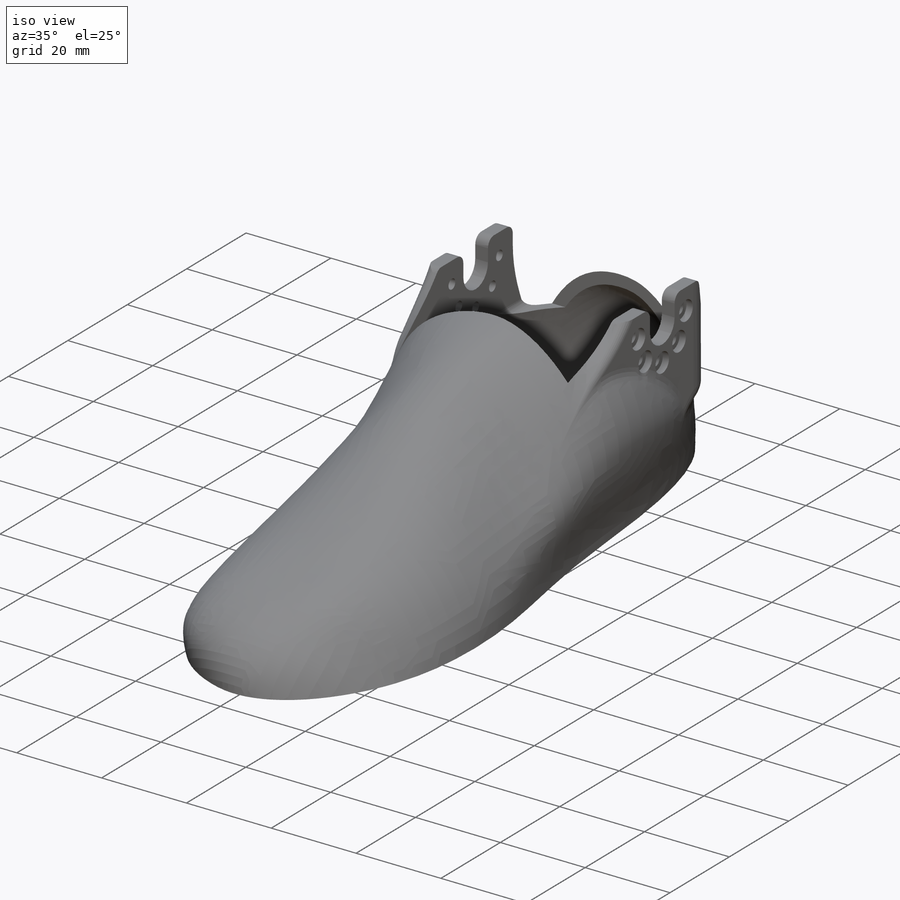
[diagram: iso view]
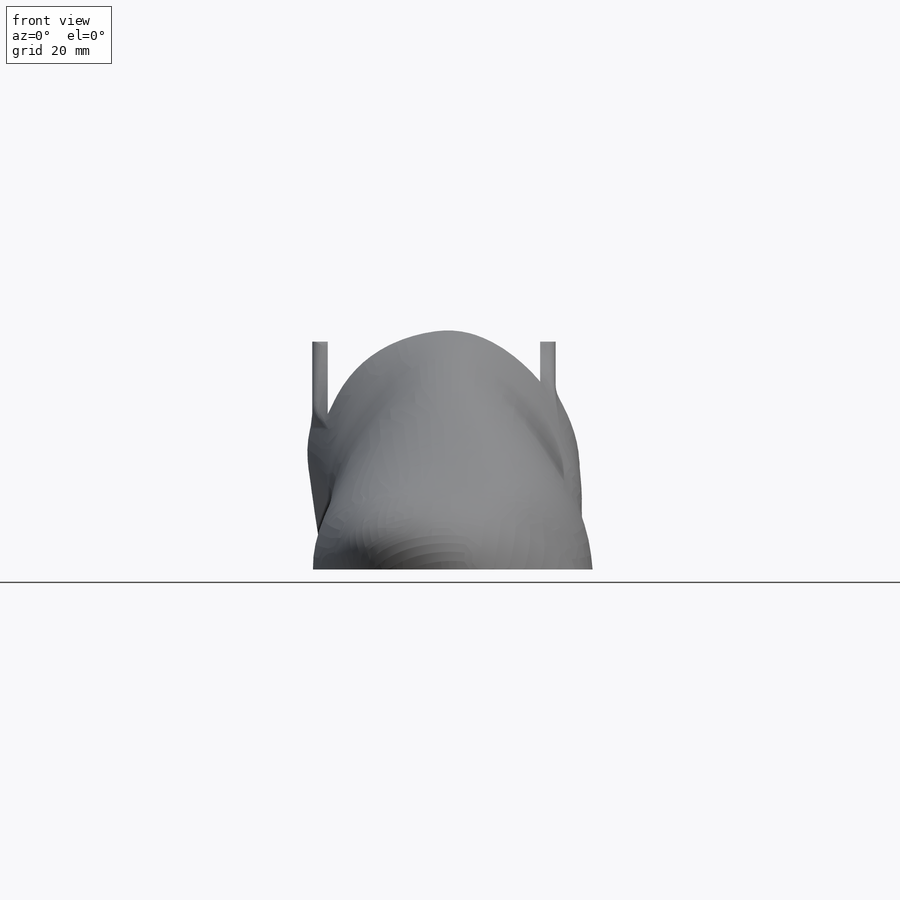
[diagram: front view]
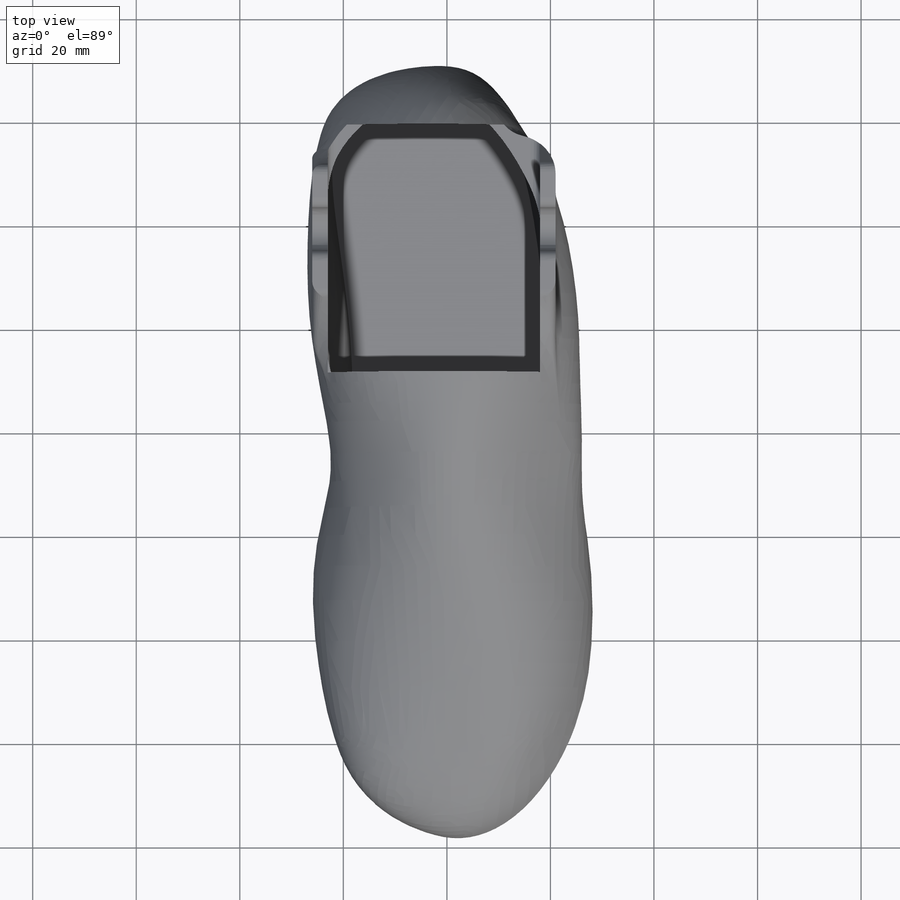
[diagram: top view]
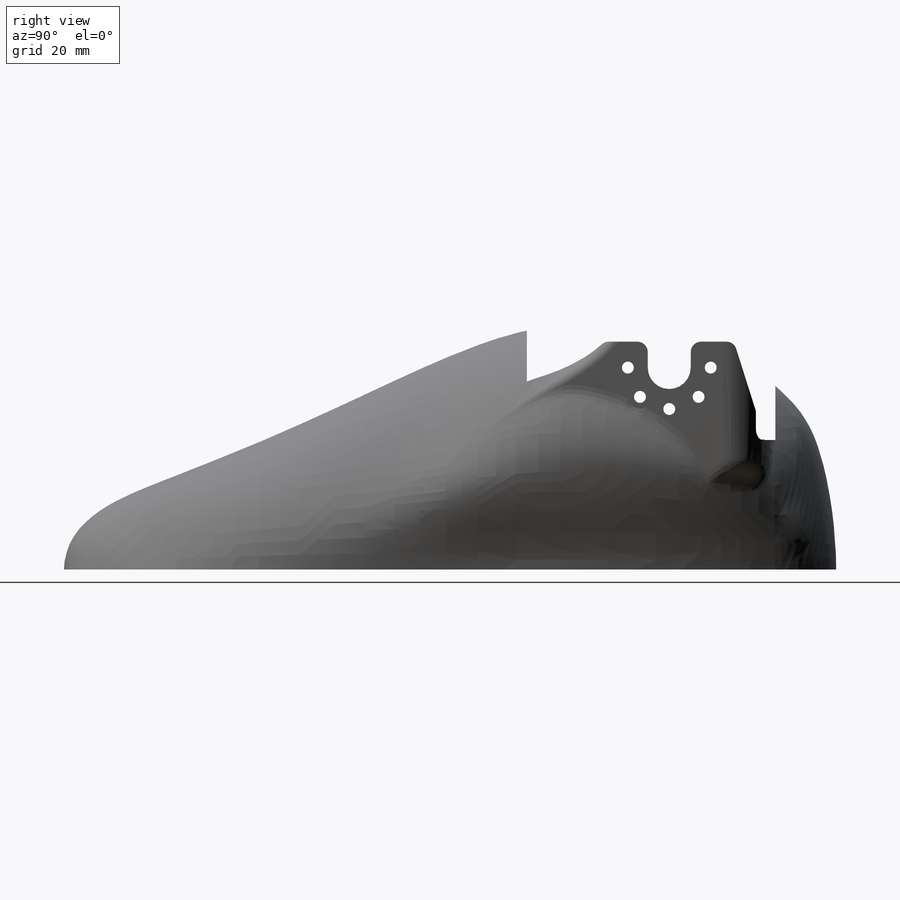
[diagram: right view]
SOLIDWORKS PART (.sldprt)
format: sldprt  version: not decoded by parser v0  size: 4,566,016 bytes
history: native  units: mm
features: sketch x32, plane x12, fillet x11, extrude x5, cut_extrude x2, hole x2, pattern_circular x2, material x1, mirror x1, delete_body x1 (+13 scaffold rows collapsed; 1 parser-record rows omitted)
feature tree (83):
  scaffold x13  (default folders/planes/origin — collapsed)
  material  "Material <not specified>"
  sketch  "lateral_dimensions"  dims[D1=51.0mm D2=98.0mm D3=47.0mm D4=29.8mm D5=104.3mm D6=134.1mm]
  sketch  "planes_positions"
  sketch  "top_dimensions"  dims[c1.D1=28.5mm c1.D2=26.0mm c2.D1=26.0mm c2.D2=28.5mm]
  sketch  "lateral_shape"
  plane  "sole_plane"
  sketch  "sole_shape"  dims[D1=~51.73616mm]
  plane  "mid_top_plane"
  sketch  "mid_top_dimensions"
  sketch  "Sketch1"
  plane  "Plane2"
  sketch  "Sketch2"
  plane  "Plane3"
  sketch  "Sketch3"
  plane  "Plane4"
  sketch  "Sketch4"
  plane  "Plane6"
  sketch  "Sketch6"
  plane  "Plane8"
  sketch  "Sketch8"
  plane  "Plane9"
  sketch  "Sketch9"
  sketch  "3DSketch3"
  sketch  "3DSketch8"
  sketch  "3DSketch9"
  sketch  "3DSketch1"
  sketch  "3DSketch2"
  sketch  "3DSketch6"
  sketch  "3DSketch4"
  sketch  "3DSketch5"  dims[D1=2.0mm]
  plane  "Plane11"
  plane  "Plane10"  Offset=47mm
  sketch  "Sketch11"  dims[D1=47.0mm D2=25.0mm D3=26.0mm D4=3.0mm D5=3.0mm]
  extrude  "Boss-Extrude1"  Depth=25mm
  sketch  "Sketch12"  dims[c1.D1=8.3mm c1.D2=8.3mm c1.D3=8.3mm c1.D4=8.3mm c2.D2=39.0mm c2.D3=12.5mm c2.D4=5.0mm c2.D5=3.0mm c2.D6=3.0mm c2.D7=19.0mm c3.D5=5.0mm]
  cut_extrude  "Cut-Extrude1"  [1 undecoded]
  hole  "CBORE for M2 Hex Socket Head Cap Screw2"  Diameter=2.3mm Depth=9.000372mm
  sketch  "Sketch16"  dims[D1=8.0mm]
  sketch  "Sketch15"  dims[hole-wizard template sketch: 42 standard entries collapsed; hole parameters kept: c12.Thru Hole Depth=~9.000372mm c12.C'Bore Dia.=4.6mm c12.C'Bore Depth=1.5mm c12.Mid C'Sink Dia.=2.4mm c12.D6=~5.388154mm c12.Mid C'Sink Angle=90.0deg]
  pattern_circular  "CirPattern1"  Count=5 Angle=45deg
  hole  "CBORE for M2 Hex Socket Head Cap Screw3"  Diameter=2.3mm Depth=15.321001mm
  sketch  "Sketch18"  dims[D1=8.0mm]
  sketch  "Sketch17"  dims[hole-wizard template sketch: 42 standard entries collapsed; hole parameters kept: c12.Thru Hole Depth=~15.321001mm c12.C'Bore Dia.=4.6mm c12.C'Bore Depth=1.5mm c12.Mid C'Sink Dia.=2.4mm c12.D6=~5.388154mm c12.Mid C'Sink Angle=90.0deg]
  pattern_circular  "CirPattern2"  Count=5 Angle=45deg
  plane  "Plane5"
  sketch  "Sketch35"  dims[D1=5.0mm D2=24.0mm]
  cut_extrude  "Cut-Extrude8"  Depth=33mm
  sketch  "Sketch36"
  extrude  "Boss-Extrude11"  [1 undecoded]
  sketch  "Sketch37"
  extrude  "Boss-Extrude12"  [1 undecoded]
  sketch  "Sketch40"  dims[D1=6.0mm D2=5.0mm]
  extrude  "Boss-Extrude15"  Depth=3mm
  sketch  "Sketch42"
  extrude  "Boss-Extrude17"  Depth=5mm
  parser-record x1  (decoder bookkeeping rows leaked as tree rows — omitted from the tree; the rows remain in map.json)
  fillet  "Fillet5"  Radius=7mm
  fillet  "Fillet1"  Radius=10mm
  fillet  "Fillet2"  Radius=12mm
  fillet  "Fillet4"  Radius=5mm
  fillet  "Fillet7"  Radius=1mm
  fillet  "Fillet8"  Radius=8mm
  fillet  "Fillet9"  Radius=2mm
  fillet  "Fillet14"  Radius=5mm
  fillet  "Fillet10"  Radius=10mm
  fillet  "Fillet11"  Radius=10mm
  fillet  "Fillet15"  Radius=2mm
  plane  "Plane12"  Offset=40mm
  mirror  "Mirror2"
  delete_body  "Body-Delete1"
decode coverage: 31 of 56 modeling features carry decoded parameters
note: ~ marks probable driven/reference dimensions
note: 3 parameter values undecoded
summary: no parameter record found for 3 features
note: suppression state not decoded; provenance and decode notes live in map.json
